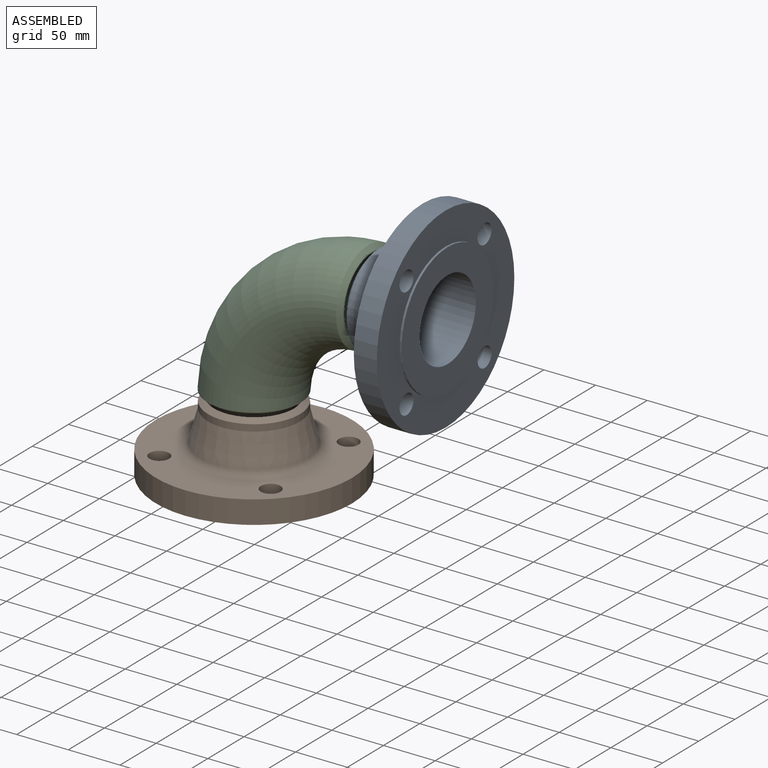
[diagram: assembled view]
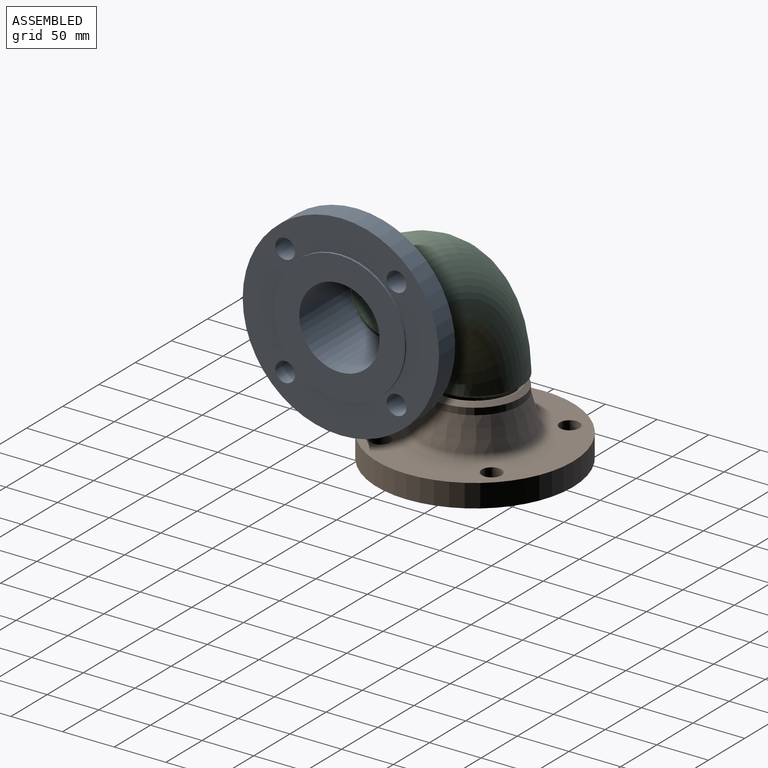
[diagram: assembled view, second angle]
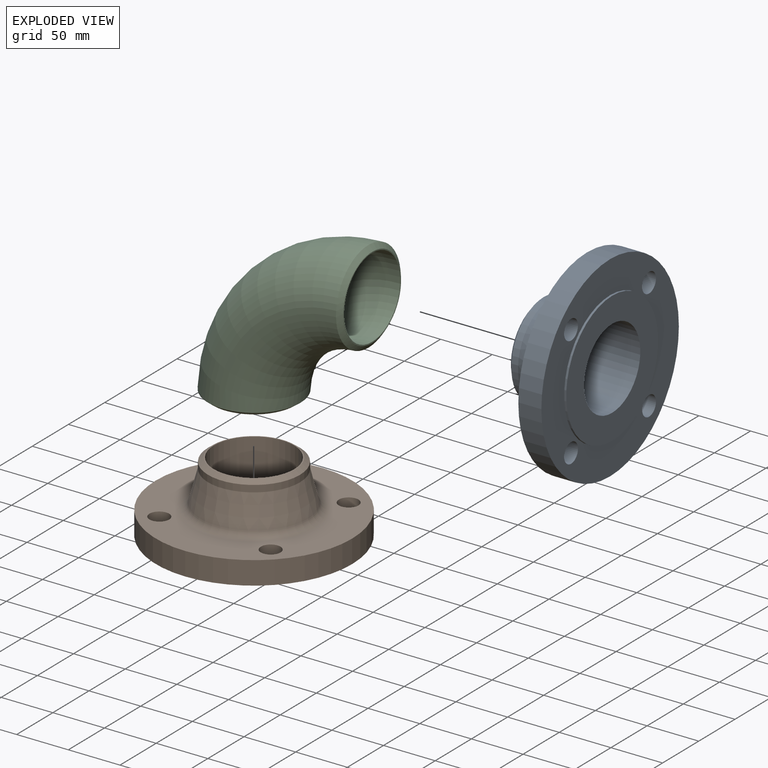
[diagram: exploded view]
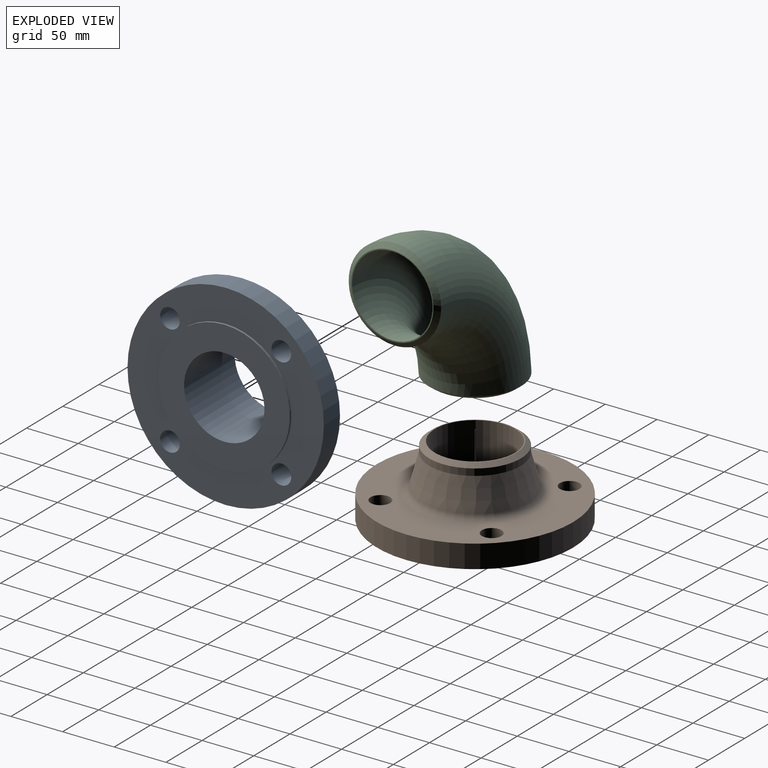
[diagram: exploded view, second angle]
ASSEMBLY  parts=3 mates=2
PART A: 16 faces, bbox 190x190x70 mm
  f0: plane 79.8x79.8mm, normal (0,0,1), area 247.6mm2, adj f1,f13
  f1: cylinder r=38.9mm len=77.8mm, axis (0,0,1), area 17109.1mm2, adj f0,f2
  f2: plane 127x127mm, normal (0,0,-1), area 7913.8mm2, adj f1,f3
  f3: cylinder r=63.5mm len=127mm, axis (0,0,1), area 798mm2, adj f2,f4
  f4: plane 190x190mm, normal (0,0,-1), area 14545.1mm2, adj f3,f5,f9,f10,f11,f12
  f5: cylinder r=95mm len=190mm, axis (0,0,1), area 13310.9mm2, adj f4,f6
  f6: plane 190x190mm, normal (0,0,1), area 15849.7mm2, adj f5,f9,f10,f11,f12,f15
  f7: cone r=54mm half-angle=15deg, axis (0,0,-1), area 9376.8mm2, adj f8,f15
  f8: cylinder r=44.45mm len=88.9mm, axis (0,0,1), area 1817.5mm2, adj f7,f14
  f9: cylinder r=9.53mm len=22.3mm, axis (0,0,1), area 1334.6mm2, adj f4,f6
  f10: cylinder r=9.53mm len=22.3mm, axis (0,0,1), area 1334.6mm2, adj f4,f6
  f11: cylinder r=9.53mm len=22.3mm, axis (0,0,1), area 1334.6mm2, adj f4,f6
  f12: cylinder r=9.53mm len=22.3mm, axis (0,0,1), area 1334.6mm2, adj f4,f6
  f13: cylinder r=39.9mm len=79.8mm, axis (0,0,-1), area 0.3mm2, adj f0,f14
  f14: cone r=39.9mm half-angle=52.5deg, axis (0,0,-1), area 1519.8mm2, adj f8,f13
  f15: torus R=60.14mm, axis (0,0,-1), area 3660.2mm2, adj f6,f7
PART B: same geometry as A
PART C: 6 faces, bbox 172.1x89.6x172.1 mm
  f0: torus R=114.4mm, axis (0,1,0), area 43921.3mm2, adj f1,f2
  f1: plane 79.93x79.89mm, normal (0,0,-1), area 250.2mm2, adj f0,f4
  f2: plane 79.93x79.89mm, normal (1,0,0), area 250.2mm2, adj f0,f5
  f3: torus R=114.4mm, axis (0,1,0), area 47311.5mm2, adj f4,f5
  f4: bspline ~89.55x89.5mm, area 1621.1mm2, adj f1,f3
  f5: bspline ~89.55x89.5mm, area 1621.1mm2, adj f2,f3
PLACE A rot(axis=(0,-1,0),90deg) t=(187.58,-0.82,151.01)mm
PLACE B t=(0.18,-0.82,-36.39)mm fixed
PLACE C t=(0.18,-0.82,36.61)mm
MATE fastened C.f1 <-> B.f1  axis (0,0,1) through (0.18,-0.82,36.61)mm
MATE fastened A.f1 <-> C.f0  axis (1,0,0) through (117.58,-0.82,151.01)mm
